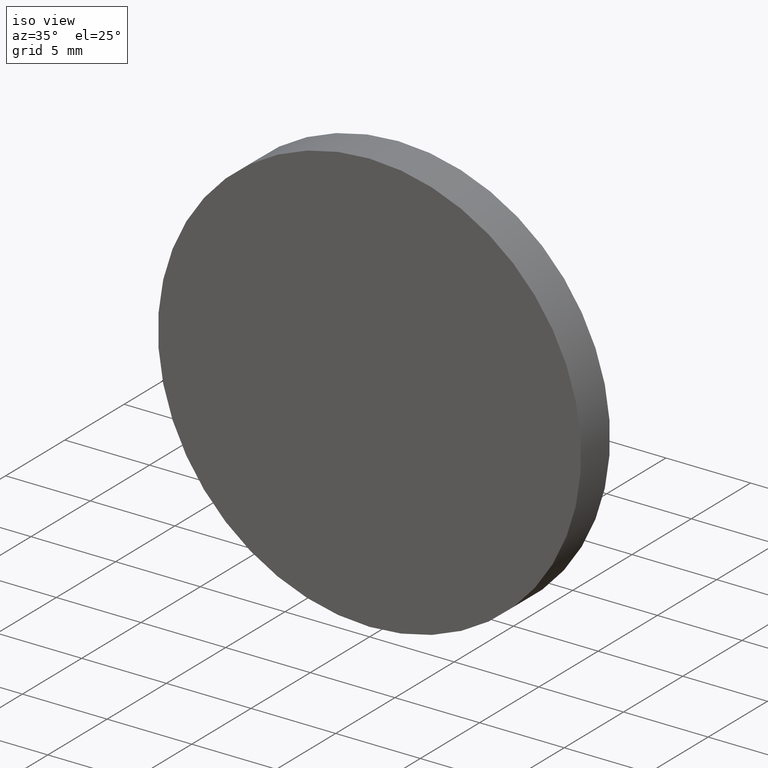
[diagram: clean part render]
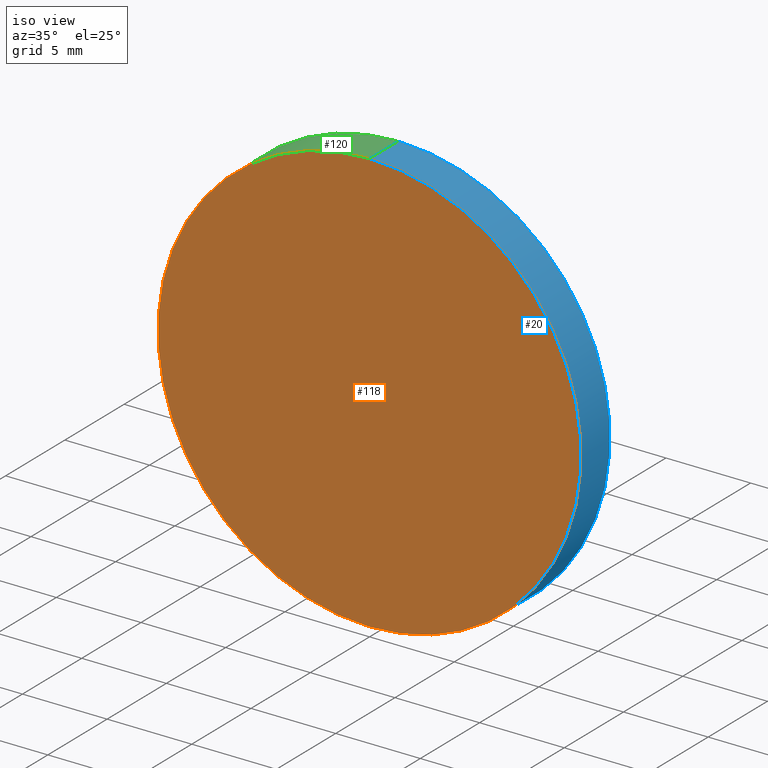
[diagram: same view with three faces highlighted in distinct colors, each labeled with its STEP entity id]
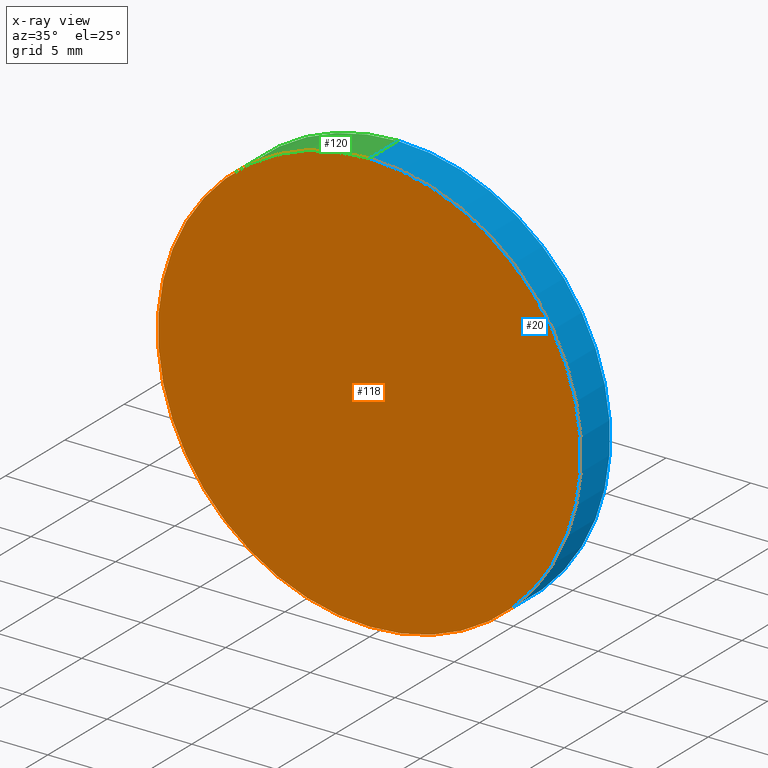
[diagram: x-ray of the same camera — body ghosted, the three highlighted faces saturated]
A machine part, iso view with three faces highlighted in distinct colors.
The next image is the same camera in x-ray (body ghosted, the three faces saturated) — at least one of them is partly hidden behind the body in this view.
Their STEP definitions:

[orange] entity #118 — the highlighted planar face has unit normal (0, 1, 0).
#3 = AXIS2_PLACEMENT_3D ( 'NONE', #127, #42, #113 ) ;
#25 = CARTESIAN_POINT ( 'NONE',  ( 0.0000000000000000000, 0.0000000000000000000, 0.0000000000000000000 ) ) ;
#32 = EDGE_LOOP ( 'NONE', ( #52, #136 ) ) ;
#42 = DIRECTION ( 'NONE',  ( 0.0000000000000000000, 1.000000000000000000, 0.0000000000000000000 ) ) ;
#50 = DIRECTION ( 'NONE',  ( 0.0000000000000000000, -0.0000000000000000000, 1.000000000000000000 ) ) ;
#52 = ORIENTED_EDGE ( 'NONE', *, *, #94, .F. ) ;
#62 = CARTESIAN_POINT ( 'NONE',  ( 0.0000000000000000000, 0.0000000000000000000, 0.0000000000000000000 ) ) ;
#63 = DIRECTION ( 'NONE',  ( 0.0000000000000000000, 1.000000000000000000, 0.0000000000000000000 ) ) ;
#68 = AXIS2_PLACEMENT_3D ( 'NONE', #25, #63, #50 ) ;
#84 = CARTESIAN_POINT ( 'NONE',  ( 0.0000000000000000000, 0.0000000000000000000, -12.50000000000000000 ) ) ;
#88 = CARTESIAN_POINT ( 'NONE',  ( 1.530808498934191500E-015, 0.0000000000000000000, 12.50000000000000000 ) ) ;
#89 = FACE_OUTER_BOUND ( 'NONE', #32, .T. ) ;
#94 = EDGE_CURVE ( 'NONE', #106, #140, #117, .T. ) ;
#100 = PLANE ( 'NONE',  #68 ) ;
#101 = AXIS2_PLACEMENT_3D ( 'NONE', #62, #133, #111 ) ;
#106 = VERTEX_POINT ( 'NONE', #84 ) ;
#111 = DIRECTION ( 'NONE',  ( 0.0000000000000000000, 0.0000000000000000000, 1.000000000000000000 ) ) ;
#113 = DIRECTION ( 'NONE',  ( 0.0000000000000000000, 0.0000000000000000000, 1.000000000000000000 ) ) ;
#117 = CIRCLE ( 'NONE', #3, 12.50000000000000000 ) ;
#118 = ADVANCED_FACE ( 'NONE', ( #89 ), #100, .F. ) ;
#122 = CIRCLE ( 'NONE', #101, 12.50000000000000000 ) ;
#127 = CARTESIAN_POINT ( 'NONE',  ( 0.0000000000000000000, 0.0000000000000000000, 0.0000000000000000000 ) ) ;
#130 = EDGE_CURVE ( 'NONE', #140, #106, #122, .T. ) ;
#133 = DIRECTION ( 'NONE',  ( 0.0000000000000000000, 1.000000000000000000, 0.0000000000000000000 ) ) ;
#136 = ORIENTED_EDGE ( 'NONE', *, *, #130, .F. ) ;
#140 = VERTEX_POINT ( 'NONE', #88 ) ;

[blue] entity #20 — the highlighted cylindrical surface (partial cylindrical patch) has radius 12.5 mm, axis along (-0, -1, -0).
#1 = VECTOR ( 'NONE', #8, 1000.000000000000000 ) ;
#6 = DIRECTION ( 'NONE',  ( 0.0000000000000000000, 0.0000000000000000000, 1.000000000000000000 ) ) ;
#7 = ORIENTED_EDGE ( 'NONE', *, *, #130, .T. ) ;
#8 = DIRECTION ( 'NONE',  ( -0.0000000000000000000, -1.000000000000000000, -0.0000000000000000000 ) ) ;
#9 = LINE ( 'NONE', #54, #38 ) ;
#13 = CARTESIAN_POINT ( 'NONE',  ( 0.0000000000000000000, 2.439999999999999900, 0.0000000000000000000 ) ) ;
#14 = LINE ( 'NONE', #83, #1 ) ;
#16 = CARTESIAN_POINT ( 'NONE',  ( 1.530808498934191500E-015, 2.439999999999999900, 12.50000000000000000 ) ) ;
#17 = DIRECTION ( 'NONE',  ( -0.0000000000000000000, -1.000000000000000000, -0.0000000000000000000 ) ) ;
#20 = ADVANCED_FACE ( 'NONE', ( #48 ), #46, .T. ) ;
#28 = CARTESIAN_POINT ( 'NONE',  ( 0.0000000000000000000, 2.439999999999999900, -12.50000000000000000 ) ) ;
#29 = DIRECTION ( 'NONE',  ( 0.0000000000000000000, 0.0000000000000000000, -1.000000000000000000 ) ) ;
#38 = VECTOR ( 'NONE', #134, 1000.000000000000000 ) ;
#46 = CYLINDRICAL_SURFACE ( 'NONE', #124, 12.50000000000000000 ) ;
#48 = FACE_OUTER_BOUND ( 'NONE', #131, .T. ) ;
#54 = CARTESIAN_POINT ( 'NONE',  ( 1.530808498934191500E-015, 2.439999999999999900, 12.50000000000000000 ) ) ;
#55 = AXIS2_PLACEMENT_3D ( 'NONE', #13, #90, #6 ) ;
#57 = VERTEX_POINT ( 'NONE', #16 ) ;
#62 = CARTESIAN_POINT ( 'NONE',  ( 0.0000000000000000000, 0.0000000000000000000, 0.0000000000000000000 ) ) ;
#64 = ORIENTED_EDGE ( 'NONE', *, *, #98, .F. ) ;
#70 = EDGE_CURVE ( 'NONE', #75, #106, #14, .T. ) ;
#75 = VERTEX_POINT ( 'NONE', #28 ) ;
#76 = ORIENTED_EDGE ( 'NONE', *, *, #107, .T. ) ;
#83 = CARTESIAN_POINT ( 'NONE',  ( 0.0000000000000000000, 2.439999999999999900, -12.50000000000000000 ) ) ;
#84 = CARTESIAN_POINT ( 'NONE',  ( 0.0000000000000000000, 0.0000000000000000000, -12.50000000000000000 ) ) ;
#86 = CIRCLE ( 'NONE', #55, 12.50000000000000000 ) ;
#88 = CARTESIAN_POINT ( 'NONE',  ( 1.530808498934191500E-015, 0.0000000000000000000, 12.50000000000000000 ) ) ;
#90 = DIRECTION ( 'NONE',  ( 0.0000000000000000000, 1.000000000000000000, 0.0000000000000000000 ) ) ;
#98 = EDGE_CURVE ( 'NONE', #57, #75, #86, .T. ) ;
#101 = AXIS2_PLACEMENT_3D ( 'NONE', #62, #133, #111 ) ;
#105 = CARTESIAN_POINT ( 'NONE',  ( 0.0000000000000000000, 2.439999999999999900, 0.0000000000000000000 ) ) ;
#106 = VERTEX_POINT ( 'NONE', #84 ) ;
#107 = EDGE_CURVE ( 'NONE', #57, #140, #9, .T. ) ;
#111 = DIRECTION ( 'NONE',  ( 0.0000000000000000000, 0.0000000000000000000, 1.000000000000000000 ) ) ;
#122 = CIRCLE ( 'NONE', #101, 12.50000000000000000 ) ;
#123 = ORIENTED_EDGE ( 'NONE', *, *, #70, .F. ) ;
#124 = AXIS2_PLACEMENT_3D ( 'NONE', #105, #17, #29 ) ;
#130 = EDGE_CURVE ( 'NONE', #140, #106, #122, .T. ) ;
#131 = EDGE_LOOP ( 'NONE', ( #64, #76, #7, #123 ) ) ;
#133 = DIRECTION ( 'NONE',  ( 0.0000000000000000000, 1.000000000000000000, 0.0000000000000000000 ) ) ;
#134 = DIRECTION ( 'NONE',  ( -0.0000000000000000000, -1.000000000000000000, -0.0000000000000000000 ) ) ;
#140 = VERTEX_POINT ( 'NONE', #88 ) ;

[green] entity #120 — the highlighted cylindrical surface (partial cylindrical patch) has radius 12.5 mm, axis along (-0, -1, -0).
#1 = VECTOR ( 'NONE', #8, 1000.000000000000000 ) ;
#3 = AXIS2_PLACEMENT_3D ( 'NONE', #127, #42, #113 ) ;
#8 = DIRECTION ( 'NONE',  ( -0.0000000000000000000, -1.000000000000000000, -0.0000000000000000000 ) ) ;
#9 = LINE ( 'NONE', #54, #38 ) ;
#10 = CYLINDRICAL_SURFACE ( 'NONE', #108, 12.50000000000000000 ) ;
#14 = LINE ( 'NONE', #83, #1 ) ;
#16 = CARTESIAN_POINT ( 'NONE',  ( 1.530808498934191500E-015, 2.439999999999999900, 12.50000000000000000 ) ) ;
#19 = ORIENTED_EDGE ( 'NONE', *, *, #94, .T. ) ;
#28 = CARTESIAN_POINT ( 'NONE',  ( 0.0000000000000000000, 2.439999999999999900, -12.50000000000000000 ) ) ;
#31 = CARTESIAN_POINT ( 'NONE',  ( 0.0000000000000000000, 2.439999999999999900, 0.0000000000000000000 ) ) ;
#33 = AXIS2_PLACEMENT_3D ( 'NONE', #31, #85, #116 ) ;
#38 = VECTOR ( 'NONE', #134, 1000.000000000000000 ) ;
#39 = CARTESIAN_POINT ( 'NONE',  ( 0.0000000000000000000, 2.439999999999999900, 0.0000000000000000000 ) ) ;
#42 = DIRECTION ( 'NONE',  ( 0.0000000000000000000, 1.000000000000000000, 0.0000000000000000000 ) ) ;
#45 = FACE_OUTER_BOUND ( 'NONE', #82, .T. ) ;
#54 = CARTESIAN_POINT ( 'NONE',  ( 1.530808498934191500E-015, 2.439999999999999900, 12.50000000000000000 ) ) ;
#57 = VERTEX_POINT ( 'NONE', #16 ) ;
#60 = ORIENTED_EDGE ( 'NONE', *, *, #70, .T. ) ;
#70 = EDGE_CURVE ( 'NONE', #75, #106, #14, .T. ) ;
#71 = CIRCLE ( 'NONE', #33, 12.50000000000000000 ) ;
#75 = VERTEX_POINT ( 'NONE', #28 ) ;
#77 = EDGE_CURVE ( 'NONE', #75, #57, #71, .T. ) ;
#82 = EDGE_LOOP ( 'NONE', ( #119, #91, #60, #19 ) ) ;
#83 = CARTESIAN_POINT ( 'NONE',  ( 0.0000000000000000000, 2.439999999999999900, -12.50000000000000000 ) ) ;
#84 = CARTESIAN_POINT ( 'NONE',  ( 0.0000000000000000000, 0.0000000000000000000, -12.50000000000000000 ) ) ;
#85 = DIRECTION ( 'NONE',  ( 0.0000000000000000000, 1.000000000000000000, 0.0000000000000000000 ) ) ;
#88 = CARTESIAN_POINT ( 'NONE',  ( 1.530808498934191500E-015, 0.0000000000000000000, 12.50000000000000000 ) ) ;
#91 = ORIENTED_EDGE ( 'NONE', *, *, #77, .F. ) ;
#94 = EDGE_CURVE ( 'NONE', #106, #140, #117, .T. ) ;
#106 = VERTEX_POINT ( 'NONE', #84 ) ;
#107 = EDGE_CURVE ( 'NONE', #57, #140, #9, .T. ) ;
#108 = AXIS2_PLACEMENT_3D ( 'NONE', #39, #112, #126 ) ;
#112 = DIRECTION ( 'NONE',  ( -0.0000000000000000000, -1.000000000000000000, -0.0000000000000000000 ) ) ;
#113 = DIRECTION ( 'NONE',  ( 0.0000000000000000000, 0.0000000000000000000, 1.000000000000000000 ) ) ;
#116 = DIRECTION ( 'NONE',  ( 0.0000000000000000000, 0.0000000000000000000, 1.000000000000000000 ) ) ;
#117 = CIRCLE ( 'NONE', #3, 12.50000000000000000 ) ;
#119 = ORIENTED_EDGE ( 'NONE', *, *, #107, .F. ) ;
#120 = ADVANCED_FACE ( 'NONE', ( #45 ), #10, .T. ) ;
#126 = DIRECTION ( 'NONE',  ( 0.0000000000000000000, 0.0000000000000000000, -1.000000000000000000 ) ) ;
#127 = CARTESIAN_POINT ( 'NONE',  ( 0.0000000000000000000, 0.0000000000000000000, 0.0000000000000000000 ) ) ;
#134 = DIRECTION ( 'NONE',  ( -0.0000000000000000000, -1.000000000000000000, -0.0000000000000000000 ) ) ;
#140 = VERTEX_POINT ( 'NONE', #88 ) ;